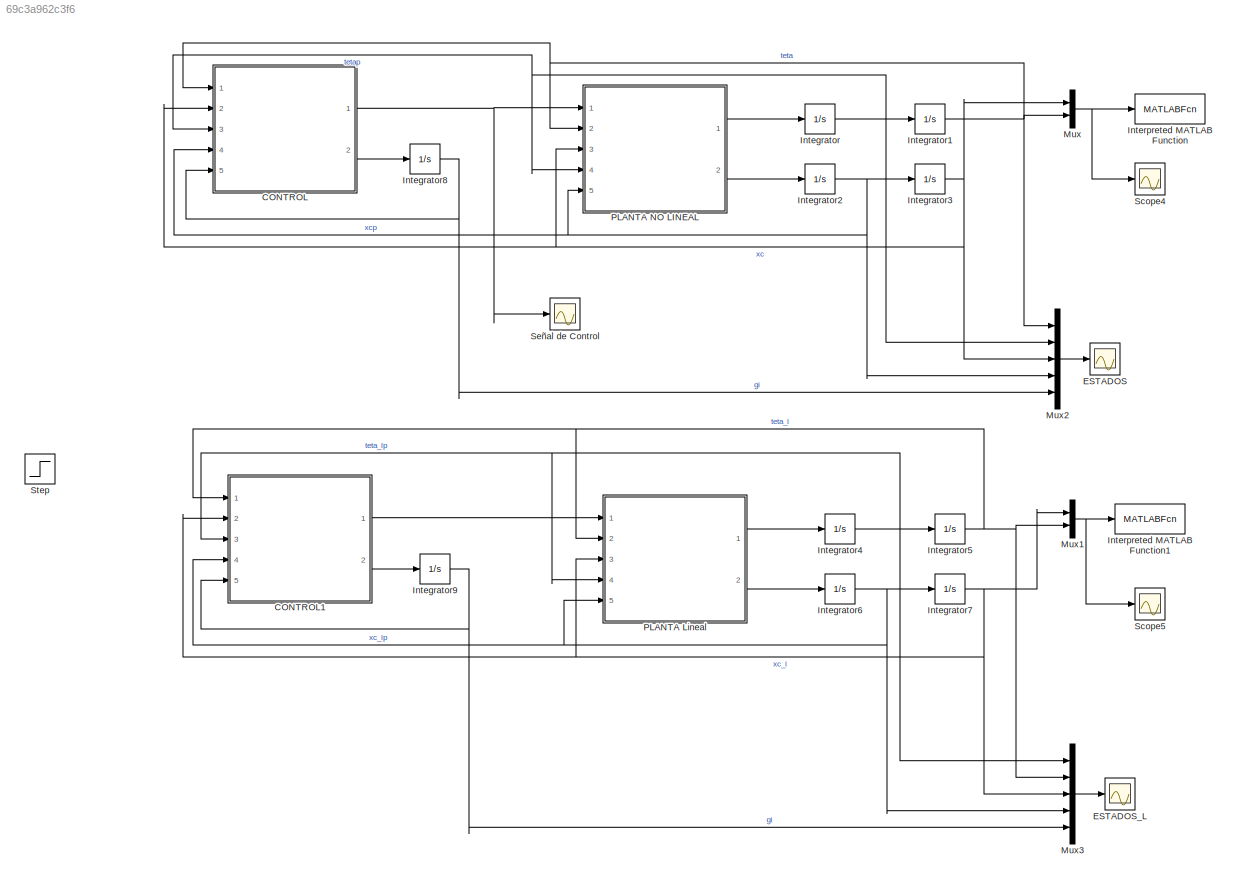
MODEL slx_69c3a962c3f6
KIND model
CONFIG AbsTol = auto
CONFIG EnableMultiTasking = off
CONFIG FixedStep = auto
CONFIG MaxStep = auto
CONFIG MinStep = auto
CONFIG RelTol = 1e-3
CONFIG SampleTimeConstraint = Unconstrained
CONFIG SolverName = VariableStepAuto
CONFIG StartTime = 0.0
CONFIG StopTime = 6
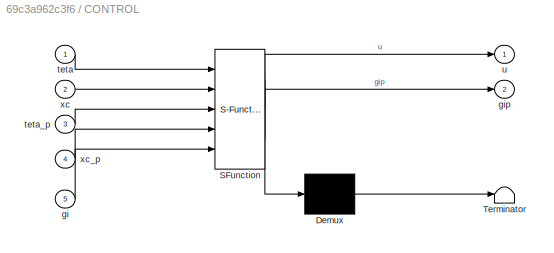
BLOCK [SubSystem] CONTROL
  ErrorFcn = Stateflow.Translate.translate
  PermitHierarchicalResolution = ExplicitOnly
  Ports = [5, 2]
  RequestExecContextInheritance = off
  SFBlockType = MATLAB Function
  TreatAsAtomicUnit = on
BLOCK [Demux] CONTROL/ Demux 
  Outputs = 1
  Ports = [1, 1]
BLOCK [S-Function] CONTROL/ SFunction 
  EnableBusSupport = on
  FunctionName = sf_sfun
  PortCounts = [5 3]
  Ports = [5, 3]
  SFcnIsStateOwnerBlock = off
  SFunctionDeploymentMode = off
  Tag = Stateflow S-Function 3
BLOCK [Terminator] CONTROL/ Terminator 
BLOCK [Inport] CONTROL/gi
  Port = 5
BLOCK [Outport] CONTROL/gip
  Port = 2
BLOCK [Inport] CONTROL/teta
BLOCK [Inport] CONTROL/teta_p
  Port = 3
BLOCK [Outport] CONTROL/u
BLOCK [Inport] CONTROL/xc
  Port = 2
BLOCK [Inport] CONTROL/xc_p
  Port = 4
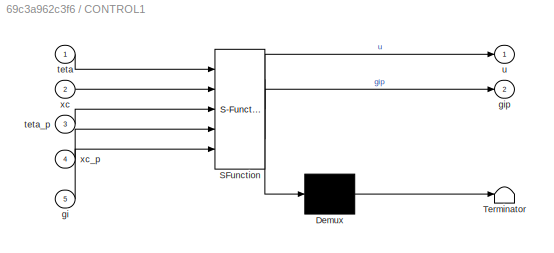
BLOCK [SubSystem] CONTROL1
  ErrorFcn = Stateflow.Translate.translate
  PermitHierarchicalResolution = ExplicitOnly
  Ports = [5, 2]
  RequestExecContextInheritance = off
  SFBlockType = MATLAB Function
  TreatAsAtomicUnit = on
BLOCK [Demux] CONTROL1/ Demux 
  Outputs = 1
  Ports = [1, 1]
BLOCK [S-Function] CONTROL1/ SFunction 
  EnableBusSupport = on
  FunctionName = sf_sfun
  PortCounts = [5 3]
  Ports = [5, 3]
  SFcnIsStateOwnerBlock = off
  SFunctionDeploymentMode = off
  Tag = Stateflow S-Function 4
BLOCK [Terminator] CONTROL1/ Terminator 
BLOCK [Inport] CONTROL1/gi
  Port = 5
BLOCK [Outport] CONTROL1/gip
  Port = 2
BLOCK [Inport] CONTROL1/teta
BLOCK [Inport] CONTROL1/teta_p
  Port = 3
BLOCK [Outport] CONTROL1/u
BLOCK [Inport] CONTROL1/xc
  Port = 2
BLOCK [Inport] CONTROL1/xc_p
  Port = 4
BLOCK [Scope] ESTADOS
  Floating = off
  NumInputPorts = 1
  Ports = [1]
  ScopeSpecificationString = Simulink.scopes.TimeScopeBlockCfg('CurrentConfiguration', extmgr.ConfigurationSet(extmgr.Configuration('Core','General UI',true),extmgr.Configuration('Core','Source UI',true),extmgr.Configuration('Sources','WiredSimulink',true,'DataLoggingVariableName','ScopeData1'),extmgr.Configuration('Visuals','Time Domain',true,'SerializedDisplays',{struct('MinYLimReal','-0.48445','MaxYLimReal','1.42512','YLab...<+1609ch>
BLOCK [Scope] ESTADOS_L
  Floating = off
  NumInputPorts = 1
  Ports = [1]
  ScopeSpecificationString = Simulink.scopes.TimeScopeBlockCfg('CurrentConfiguration', extmgr.ConfigurationSet(extmgr.Configuration('Core','General UI',true),extmgr.Configuration('Core','Source UI',true),extmgr.Configuration('Sources','WiredSimulink',true,'DataLoggingVariableName','ScopeData1'),extmgr.Configuration('Visuals','Time Domain',true,'SerializedDisplays',{struct('MinYLimReal','-0.48621','MaxYLimReal','1.42697','YLab...<+1621ch>
BLOCK [Integrator] Integrator
  Ports = [1, 1]
BLOCK [Integrator] Integrator1
  InitialCondition = 3*pi/180
  Ports = [1, 1]
BLOCK [Integrator] Integrator2
  Ports = [1, 1]
BLOCK [Integrator] Integrator3
  InitialCondition = 0.5
  Ports = [1, 1]
BLOCK [Integrator] Integrator4
  Ports = [1, 1]
BLOCK [Integrator] Integrator5
  InitialCondition = 3*pi/180
  Ports = [1, 1]
BLOCK [Integrator] Integrator6
  Ports = [1, 1]
BLOCK [Integrator] Integrator7
  InitialCondition = 0.5
  Ports = [1, 1]
BLOCK [Integrator] Integrator8
  Ports = [1, 1]
BLOCK [Integrator] Integrator9
  Ports = [1, 1]
BLOCK [MATLABFcn] Interpreted MATLAB Function
  MATLABFcn = animacion_pendulo_carro
  OutputDimensions = 0
  Ports = [1]
BLOCK [MATLABFcn] Interpreted MATLAB Function1
  MATLABFcn = animacion_pendulo_carro
  OutputDimensions = 0
  Ports = [1]
BLOCK [Mux] Mux
  DisplayOption = bar
  Inputs = 2
  Ports = [2, 1]
BLOCK [Mux] Mux1
  DisplayOption = bar
  Inputs = 2
  Ports = [2, 1]
BLOCK [Mux] Mux2
  DisplayOption = bar
  Inputs = 5
  Ports = [5, 1]
BLOCK [Mux] Mux3
  DisplayOption = bar
  Inputs = 5
  Ports = [5, 1]
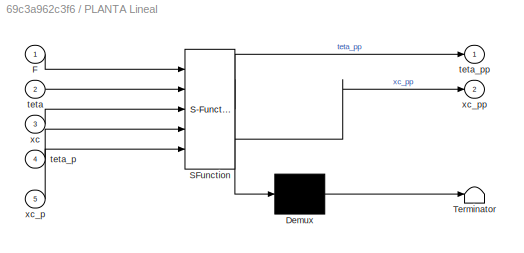
BLOCK [SubSystem] PLANTA Lineal
  ErrorFcn = Stateflow.Translate.translate
  PermitHierarchicalResolution = ExplicitOnly
  Ports = [5, 2]
  RequestExecContextInheritance = off
  SFBlockType = MATLAB Function
  TreatAsAtomicUnit = on
BLOCK [Demux] PLANTA Lineal/ Demux 
  Outputs = 1
  Ports = [1, 1]
BLOCK [S-Function] PLANTA Lineal/ SFunction 
  EnableBusSupport = on
  FunctionName = sf_sfun
  PortCounts = [5 3]
  Ports = [5, 3]
  SFcnIsStateOwnerBlock = off
  SFunctionDeploymentMode = off
  Tag = Stateflow S-Function 1
BLOCK [Terminator] PLANTA Lineal/ Terminator 
BLOCK [Inport] PLANTA Lineal/F
BLOCK [Inport] PLANTA Lineal/teta
  Port = 2
BLOCK [Inport] PLANTA Lineal/teta_p
  Port = 4
BLOCK [Outport] PLANTA Lineal/teta_pp
BLOCK [Inport] PLANTA Lineal/xc
  Port = 3
BLOCK [Inport] PLANTA Lineal/xc_p
  Port = 5
BLOCK [Outport] PLANTA Lineal/xc_pp
  Port = 2
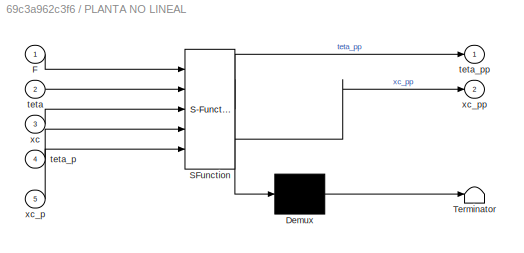
BLOCK [SubSystem] PLANTA NO LINEAL
  ErrorFcn = Stateflow.Translate.translate
  PermitHierarchicalResolution = ExplicitOnly
  Ports = [5, 2]
  RequestExecContextInheritance = off
  SFBlockType = MATLAB Function
  TreatAsAtomicUnit = on
BLOCK [Demux] PLANTA NO LINEAL/ Demux 
  Outputs = 1
  Ports = [1, 1]
BLOCK [S-Function] PLANTA NO LINEAL/ SFunction 
  EnableBusSupport = on
  FunctionName = sf_sfun
  PortCounts = [5 3]
  Ports = [5, 3]
  SFcnIsStateOwnerBlock = off
  SFunctionDeploymentMode = off
  Tag = Stateflow S-Function 2
BLOCK [Terminator] PLANTA NO LINEAL/ Terminator 
BLOCK [Inport] PLANTA NO LINEAL/F
BLOCK [Inport] PLANTA NO LINEAL/teta
  Port = 2
BLOCK [Inport] PLANTA NO LINEAL/teta_p
  Port = 4
BLOCK [Outport] PLANTA NO LINEAL/teta_pp
BLOCK [Inport] PLANTA NO LINEAL/xc
  Port = 3
BLOCK [Inport] PLANTA NO LINEAL/xc_p
  Port = 5
BLOCK [Outport] PLANTA NO LINEAL/xc_pp
  Port = 2
BLOCK [Scope] Scope4
  Floating = off
  NumInputPorts = 1
  Ports = [1]
  ScopeSpecificationString = Simulink.scopes.TimeScopeBlockCfg('CurrentConfiguration', extmgr.ConfigurationSet(extmgr.Configuration('Core','General UI',true),extmgr.Configuration('Core','Source UI',true),extmgr.Configuration('Sources','WiredSimulink',true,'DataLoggingVariableName','ScopeData1'),extmgr.Configuration('Visuals','Time Domain',true,'SerializedDisplays',{struct('MinYLimReal','-0.24625','MaxYLimReal','1.30055','YLab...<+1366ch>
BLOCK [Scope] Scope5
  Floating = off
  NumInputPorts = 1
  Ports = [1]
  ScopeSpecificationString = Simulink.scopes.TimeScopeBlockCfg('CurrentConfiguration', extmgr.ConfigurationSet(extmgr.Configuration('Core','General UI',true),extmgr.Configuration('Core','Source UI',true),extmgr.Configuration('Sources','WiredSimulink',true,'DataLoggingVariableName','ScopeData2'),extmgr.Configuration('Visuals','Time Domain',true,'SerializedDisplays',{struct('MinYLimReal','-1164.79034','MaxYLimReal','4271.94505'...<+1426ch>
BLOCK [Scope] Señal de Control
  Floating = off
  NumInputPorts = 1
  Ports = [1]
  ScopeSpecificationString = Simulink.scopes.TimeScopeBlockCfg('CurrentConfiguration', extmgr.ConfigurationSet(extmgr.Configuration('Core','General UI',true),extmgr.Configuration('Core','Source UI',true),extmgr.Configuration('Sources','WiredSimulink',true,'DataLoggingVariableName','ScopeData2'),extmgr.Configuration('Visuals','Time Domain',true,'SerializedDisplays',{struct('MinYLimReal','-4.32445','MaxYLimReal','6.79793','YLab...<+1398ch>
BLOCK [Step] Step
  SampleTime = 0
LINE CONTROL1:1 -> PLANTA Lineal:1
LINE CONTROL1:2 -> Integrator9:1
NET CONTROL:1 -> PLANTA NO LINEAL:1, Señal de Control:1
LINE CONTROL:2 -> Integrator8:1
NET Integrator1:1 -> CONTROL:1, Mux2:1, Mux:2, PLANTA NO LINEAL:2
NET Integrator2:1 -> CONTROL:4, Integrator3:1, Mux2:4, PLANTA NO LINEAL:5
NET Integrator3:1 -> CONTROL:2, Mux2:3, Mux:1, PLANTA NO LINEAL:3
NET Integrator4:1 -> CONTROL1:3, Integrator5:1, Mux3:1, PLANTA Lineal:4
NET Integrator5:1 -> CONTROL1:1, Mux1:2, Mux3:2, PLANTA Lineal:2
NET Integrator6:1 -> CONTROL1:4, Integrator7:1, Mux3:4, PLANTA Lineal:5
NET Integrator7:1 -> CONTROL1:2, Mux1:1, Mux3:3, PLANTA Lineal:3
NET Integrator8:1 -> CONTROL:5, Mux2:5
NET Integrator9:1 -> CONTROL1:5, Mux3:5
NET Integrator:1 -> CONTROL:3, Integrator1:1, Mux2:2, PLANTA NO LINEAL:4
NET Mux1:1 -> Interpreted MATLAB Function1:1, Scope5:1
LINE Mux2:1 -> ESTADOS:1
LINE Mux3:1 -> ESTADOS_L:1
NET Mux:1 -> Interpreted MATLAB Function:1, Scope4:1
LINE PLANTA Lineal:1 -> Integrator4:1
LINE PLANTA Lineal:2 -> Integrator6:1
LINE PLANTA NO LINEAL:1 -> Integrator:1
LINE PLANTA NO LINEAL:2 -> Integrator2:1
note: NET lines group one-source signal fan-out (src -> all destinations, sorted); 1:1 wires keep LINE
CHART PLANTA Lineal states=1 transitions=1
  STATE_LABEL 'eML_blk_kernel()'
  STATE_LABEL 'SCRIPT:\nfunction [teta_pp, xc_pp] = fcn(F, teta, xc, teta_p, xc_p)\nm = 0.1;\nM = 2;\nl = 0.5;\nL = 1;\ng = 9.81;\n\n% sin(teta) ~= 0\n% xc_pp = F / (M + 2*m);\n% teta_pp = -F / (l * (M + 2*m));\n\n% sin(teta) ~= teta\n% xc_pp = (F - m * g * teta) / M;\n% teta_pp = (-F + (M + m) * g * teta) / M;\n\nA = [0, 1, 0, 0; \n    (M+m)*g/(M*l), 0, 0, 0; \n    0, 0, 0, 1; \n    -m*g/M, 0, 0, 0];\nB=[0; -1/(M*l); 0;  1/M];\n% V...<+131ch>'
CHART PLANTA NO LINEAL states=1 transitions=1
  STATE_LABEL 'eML_blk_kernel()'
  STATE_LABEL 'SCRIPT:\nfunction [teta_pp, xc_pp] = fcn(F, teta, xc, teta_p, xc_p)\nm = 0.1;\nM = 2;\nl = 0.5;\nL = 1;\ng = 9.81;\n\ndet = ((M + m)*m*l^2 - (m*l*cos(teta))^2);\n\nxc_pp = (m*l^2 * (F + m*l*sin(teta) * teta_p^2)... \n            - m*l*cos(teta) * (m*g*l*sin(teta))) / det;\n        \nteta_pp = (-m*l*cos(teta) * (F + m*l*sin(teta) * teta_p^2)...\n            + (M + m)*(m*g*l*sin(teta))) / det;        '
CHART CONTROL states=1 transitions=1
  STATE_LABEL 'eML_blk_kernel()'
  STATE_LABEL 'SCRIPT:\nfunction [u, gip] = fcn(teta, xc, teta_p, xc_p, gi)\n% Plant\nM = 2;\nm = 0.1; \nL = 0.5;\ng = 9.81;\n% Reference\nr = 1.5;\n\nA = [0 , 1, 0, 0; \n    (M+m)*g/(M*L), 0, 0, 0;\n    0, 0, 0, 1;\n    -m*g/M, 0, 0, 0];\nB = [0; -1/(M*L); 0; 1/M];\nC = [0, 0, 1, 0];\n\nK = [-157.633619775739,-35.3733027419025,-56.0652395514781,-36.7466054838049];\nKi = -50.968399592252790;\n\n% AA = [A-B*K, B*Ki; -C, 0];\n% BB = [...<+117ch>'
CHART CONTROL1 states=1 transitions=1
  STATE_LABEL 'eML_blk_kernel()'
  STATE_LABEL 'SCRIPT:\nfunction [u, gip] = fcn(teta, xc, teta_p, xc_p, gi)\n% Plant\nM = 2;\nm = 0.1; \nL = 0.5;\ng = 9.81;\n% Reference\nr = 1.5;\n\nA = [0 , 1, 0, 0; \n    (M+m)*g/(M*L), 0, 0, 0;\n    0, 0, 0, 1;\n    -m*g/M, 0, 0, 0];\nB = [0; -1/(M*L); 0; 1/M];\nC = [0, 0, 1, 0];\n\nK = [-157.633619775739,-35.3733027419025,-56.0652395514781,-36.7466054838049];\nKi = -50.968399592252790;\n\nX = [teta; teta_p; xc; xc_p];\nY = C *...<+38ch>'
CHART  states=0 transitions=0
CHART  states=0 transitions=0
CHART  states=0 transitions=0
CHART  states=0 transitions=0
